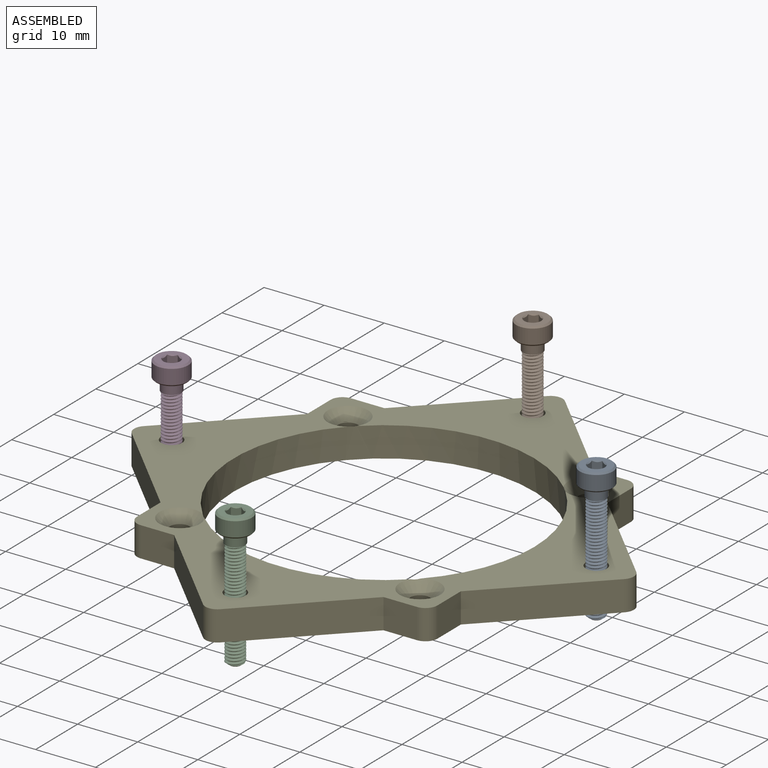
[diagram: assembled view]
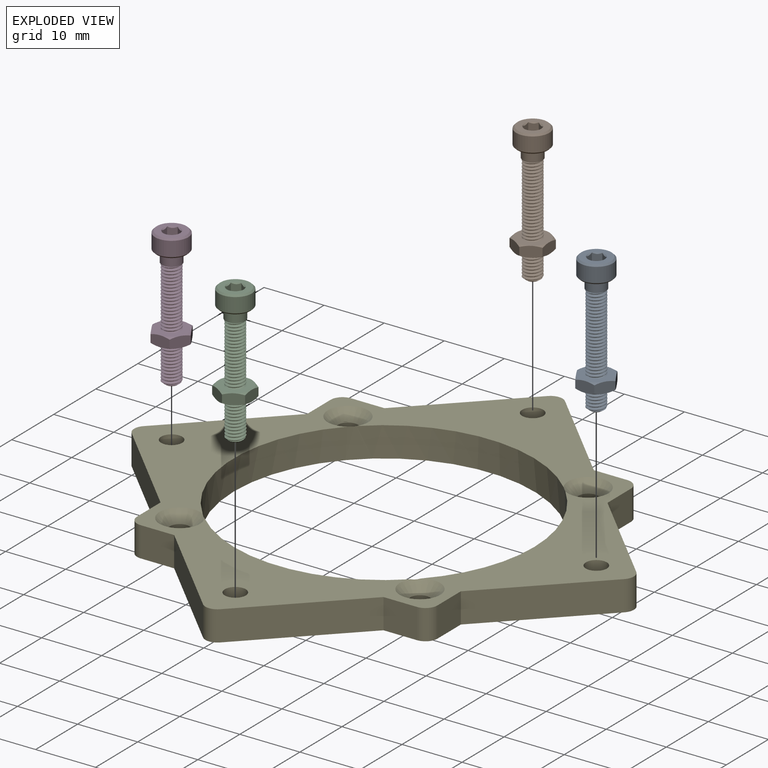
[diagram: exploded view]
GUIDED TOUR — MATED ASSEMBLY WITH SUBASSEMBLIES (Onshape document c32c4f820cddbbeb0b0f44df, AutoMate assembly c32c4f820cddbbeb0b0f44df_1a999598d7298302037ef0e0_8563abc52cc1d183e87581e6_default)

This assembly has 9 component occurrences arranged in 5 top-level units: 1 individual components plus 4 subassemblies (S0, S1, S2, S3). The tour has two levels: first the top level, where each subassembly is treated as one rigid unit; then each subassembly is toured internally in its own section (nesting deeper than one subassembly level is flattened into its subassembly's section).

Components are labeled P0..P8 across the whole record; subassembly units are labeled S0..S3. A mate is a constraint between two units; its type names the relative motion it leaves free:
  CYLINDRICAL — leaves both rotation about and translation along the listed axis free,
  FASTENED — locks the two components together rigidly (no relative motion).
Axis/direction vectors are unit vectors and 'through' points are millimeter coordinates, both in the assembly's world frame.

TOP-LEVEL MATES (between units; each subassembly's internal mates are listed in its own section)
  1. FASTENED "Captive nut": S0 <-> P6, direction (0.000, 0.000, 1.000) through (34.08, 0.39, 13.19) mm
  2. FASTENED "Captive nut 4": S2 <-> P6, direction (0.000, 0.000, 1.000) through (-1.28, -34.97, 13.19) mm
  3. FASTENED "Captive nut 3": S3 <-> P6, direction (0.000, 0.000, 1.000) through (-36.63, 0.39, 13.19) mm
  4. FASTENED "Captive nut 2": S1 <-> P6, direction (0.000, 0.000, 1.000) through (-1.28, 35.75, 13.19) mm

TOP-LEVEL ASSEMBLY ORDER
  1. P6 — the base component [order heuristic]
  2. S0 — core [order heuristic]
  3. S3 — core [order heuristic]
  4. S2 [order verified]
  5. S1 [order verified]
Order-tag legend:
  [order verified] — this step's position reverses a verified removal order: the component was checked to insert without passing through the ones already placed.
  [order heuristic] — the first 3 components form the assembly's core: parts whose collision-free extraction could not be verified, listed in mate-graph order.

Of the 9 component occurrences, 1 carries the full construction recipe — the FeatureScript program that regenerates the part's solid from scratch; the rest are supplied as boundary geometry only. Each toured unit is shown spotlighted twice — assembled, then exploded with a leader line back to its socket (green = recipe-attached component, orange = geometry-only, blue = subassembly unit; the rest desaturated gray).
NOTE — document 2 of 2 of this assembly tour. The two overview renders and the header above are repeated from document 1; the component sections below continue where the previous document stopped.
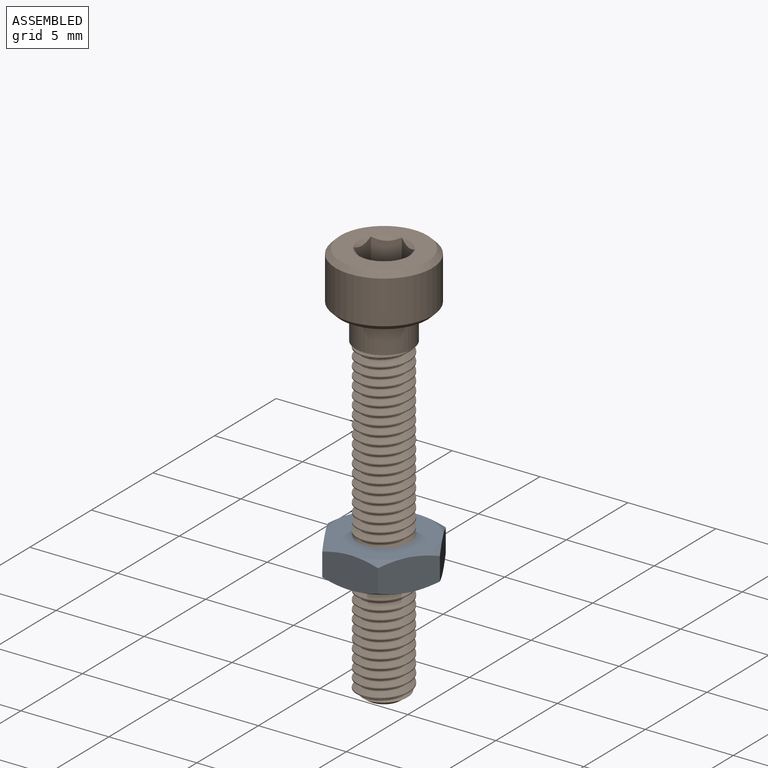
[diagram: subassembly S3 — assembled view]
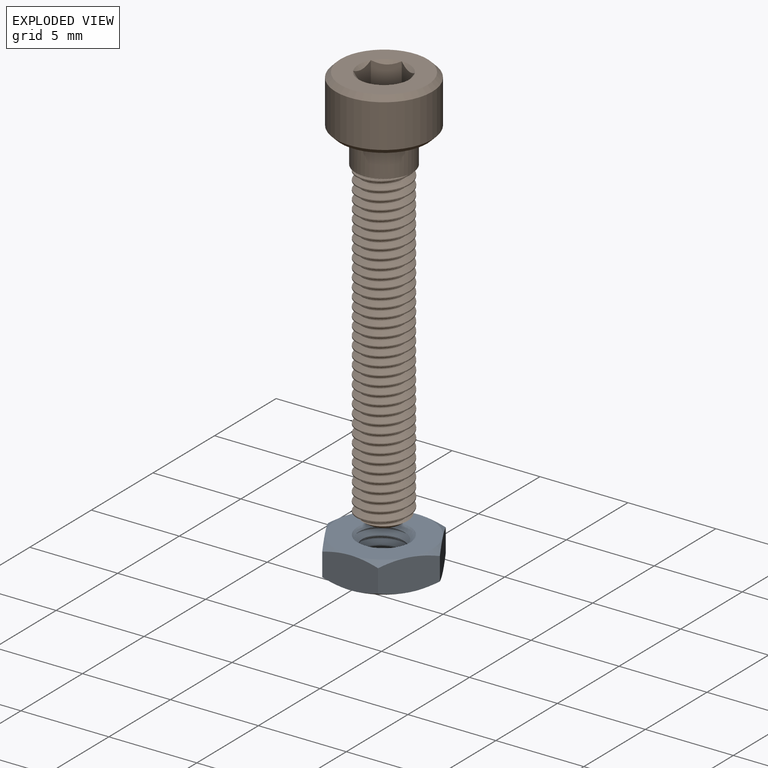
[diagram: subassembly S3 — exploded view]
SUBASSEMBLY S3 TOUR — 2 components, shown here in isolation at its own camera.

INTERNAL MATES
  1. CYLINDRICAL "Nut and Screw": P5 <-> P8, axis (0.000, 0.000, 1.000) through (-36.63, 0.39, 13.19) mm
  2. CYLINDRICAL "Nut and Screw": P5 <-> P8, axis (0.000, 0.000, 1.000) through (-36.63, 0.39, 13.19) mm

ASSEMBLY ORDER (within the subassembly)
  1. P5 — the base component [order heuristic]
  2. P8 [order heuristic]
Order-tag legend:
  [order heuristic] — this assembly is geometrically interlocked (no collision-free removal order exists), so components are listed in mate-graph order; insertion feasibility is not verified.
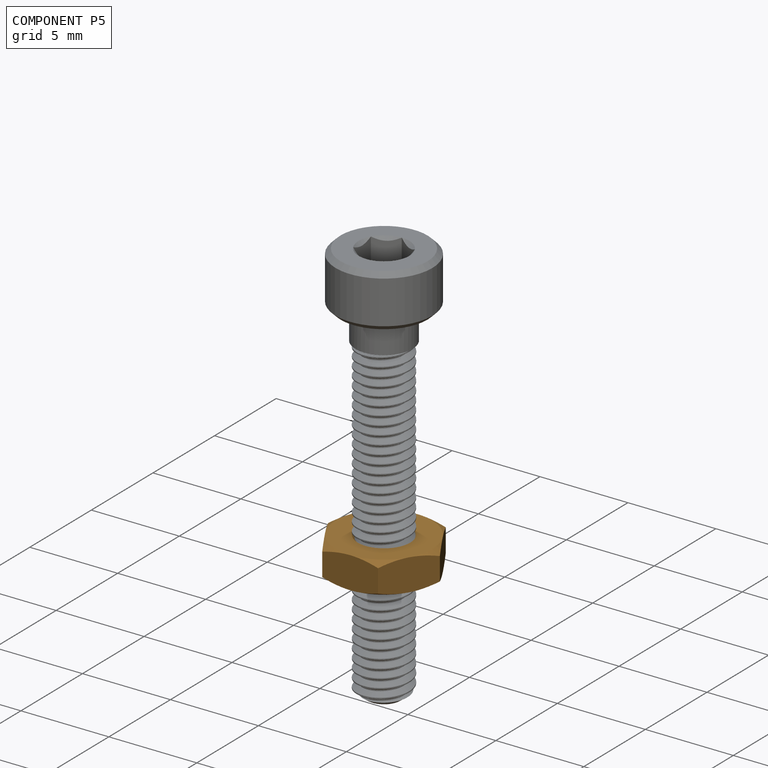
[diagram: component P5 — assembled]
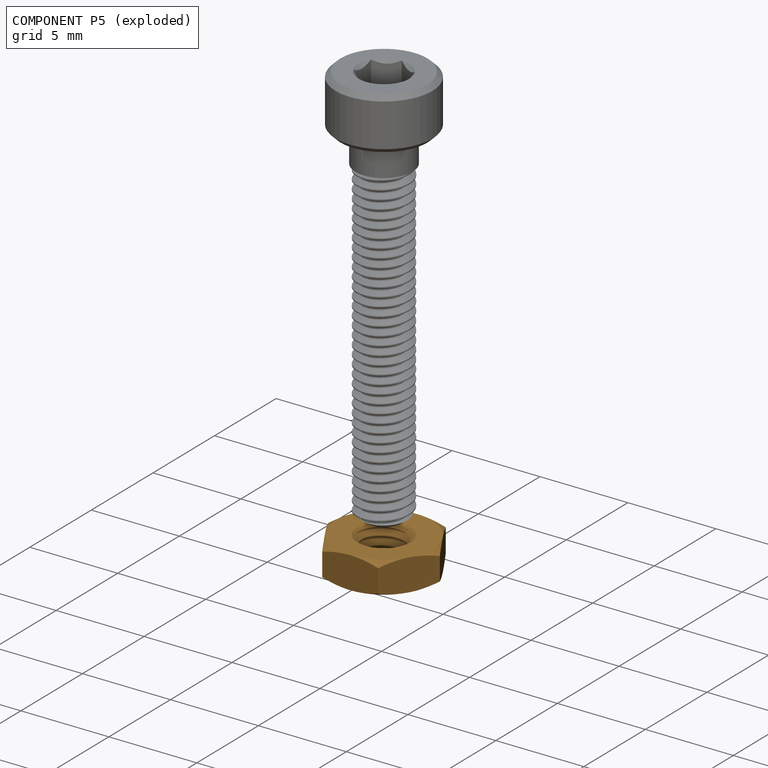
[diagram: component P5 — exploded]
COMPONENT P5 — geometry summary (no construction recipe available for this part):
  bounding box: 6.6 x 6.6 x 2.5 mm
  B-rep topology: 1 solid, 26 faces, 112 edges
  volume: 39 mm^3 (36% of its bounding box)
Held by: CYLINDRICAL mate "Nut and Screw" to P8; CYLINDRICAL mate "Nut and Screw" to P8.
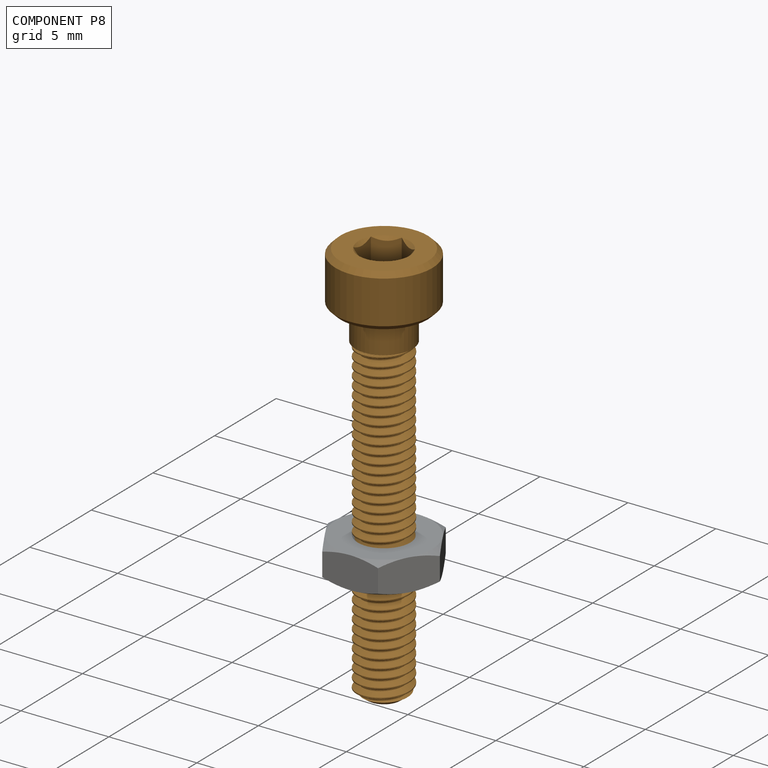
[diagram: component P8 — assembled]
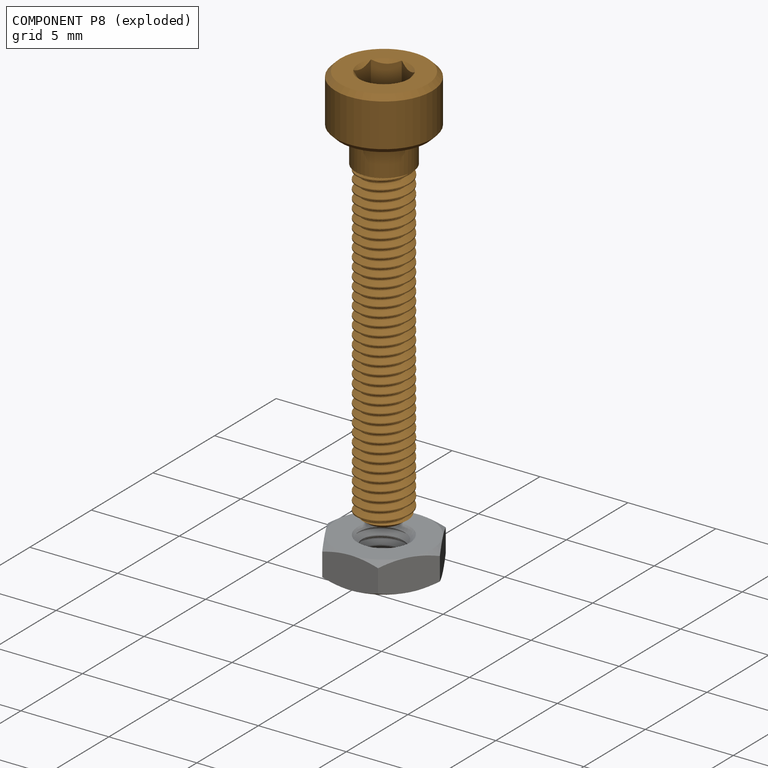
[diagram: component P8 — exploded]
COMPONENT P8 — geometry summary (no construction recipe available for this part):
  bounding box: 23.0 x 5.5 x 5.5 mm
  B-rep topology: 1 solid, 27 faces, 108 edges
  volume: 184 mm^3 (26% of its bounding box)
  symmetry: revolution-symmetric about the z axis through its bounding-box center
Held by: CYLINDRICAL mate "Nut and Screw" to P5; CYLINDRICAL mate "Nut and Screw" to P5.
PROVENANCE & LICENSES
Assembly (occurrences, transforms, mates, per-part STEP geometry): AutoMate dataset, Zenodo record 7776208, CC0.
Construction recipes: CADFS (HuggingFace VladPyatov/CADFS, CC-BY-4.0, layered over the ABC dataset), FeatureScript reconstruction programs keyed by ABC model id.
Join: ABC meta listings map ABC model id -> Onshape documentId; within a shared document, parts are matched by geometric signature (bounding-box dims + volume at 0.1% relative tolerance, exact B-rep face/solid counts).
Verification: 1 of this assembly's 9 components carries a recipe attachment, and every attachment is mesh-verified: the CADFS STEP and the AutoMate member STEP were compared as meshes in their shared local frame (symmetric sampled-point-to-mesh distance); worst across the 1 attachment: below the mesh-comparison resolution (tessellation chordal tolerance ~0.177 mm) on a 118 mm part.
Renders: orthographic iso camera (az 35 / el 25); the floor grid conveys scale (grid pitch printed in each image; no ruler). In the exploded view each component is displaced by its stored offset vector: the offsets alone carry the explosion direction (mate normal/axis signs are not orientation cues and do not encode it), and separation distances are assigned per mate-chain, not proportionally to assembly-order depth.
